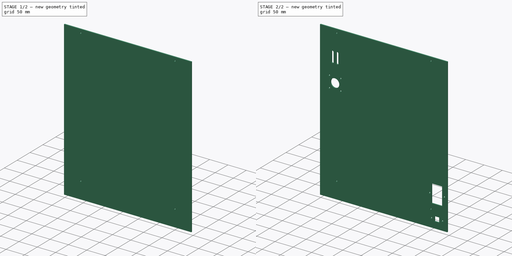
[diagram: build sequence overview — one tinted view per stage of 2, left to right]
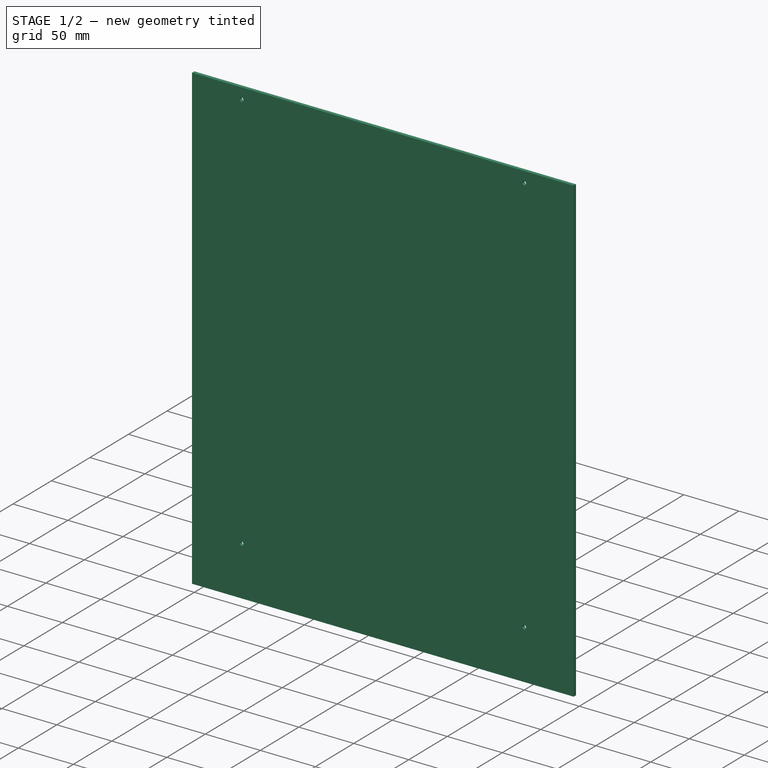
[diagram: stage 1 of 2 — iso view after this stage's code; geometry added in this stage tinted green]
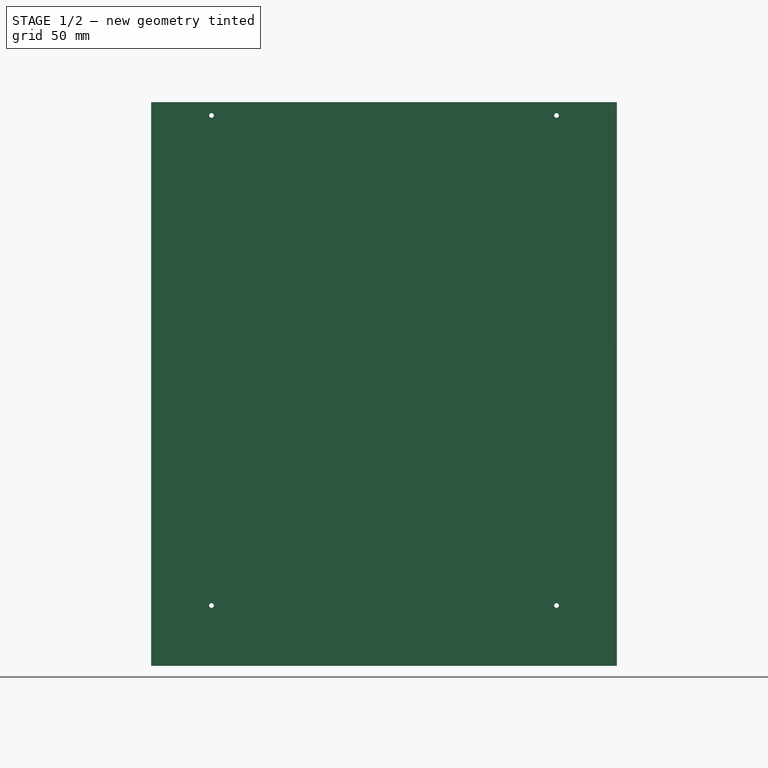
[diagram: stage 1 of 2 — front view after this stage's code; geometry added in this stage tinted green]
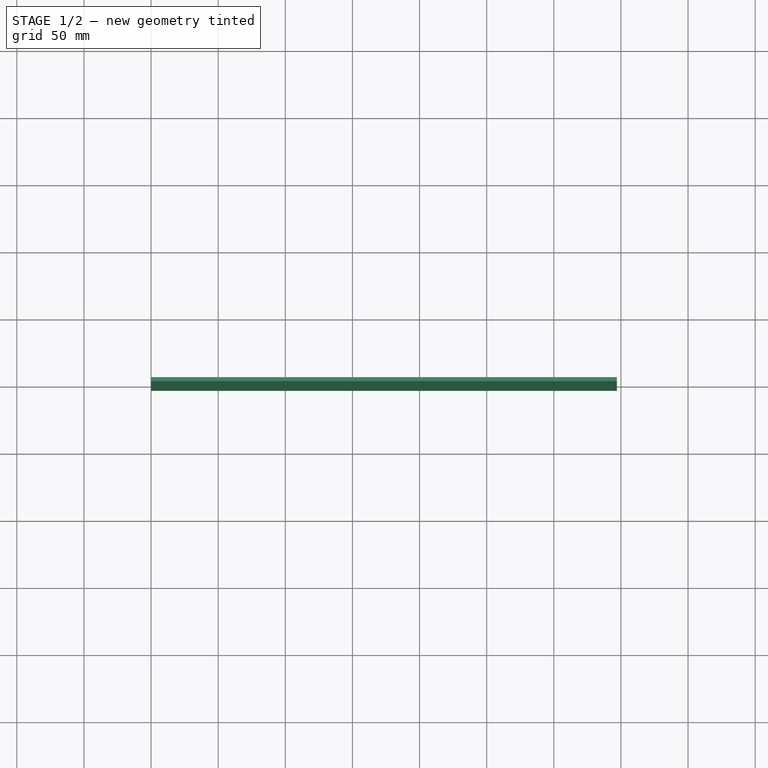
[diagram: stage 1 of 2 — top view after this stage's code; geometry added in this stage tinted green]
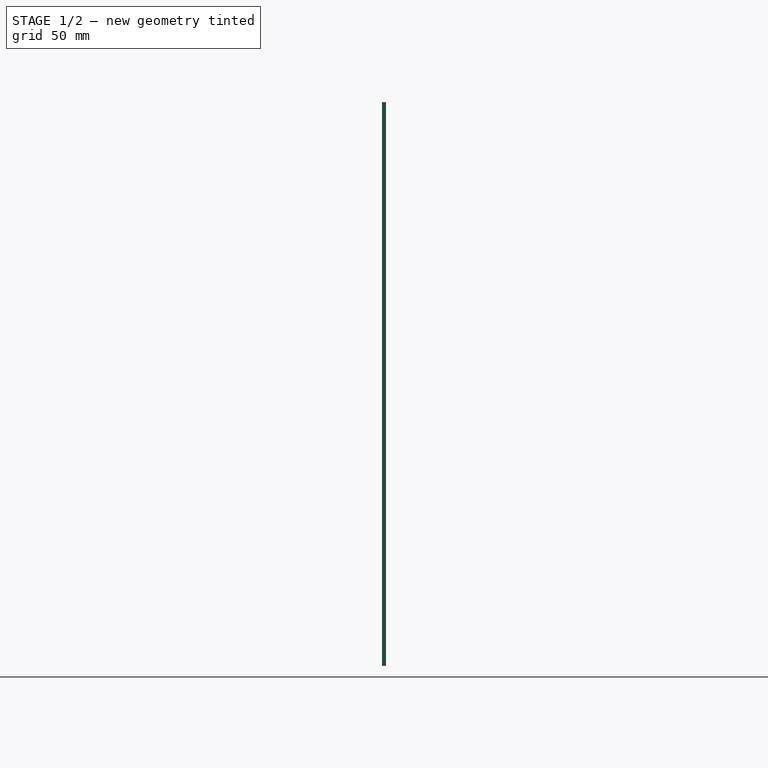
[diagram: stage 1 of 2 — right view after this stage's code; geometry added in this stage tinted green]
FCSTD DOCUMENT  (FreeCAD 0.17R13522 (Git))
Label: Corelia_0_Back_plate
License: All rights reserved
LicenseURL: http://en.wikipedia.org/wiki/All_rights_reserved
objects: Sketcher::SketchObject×4, PartDesign::Pocket×3, PartDesign::Pad×1, PartDesign::Body×1, TechDraw::DrawSVGTemplate×1, TechDraw::DrawViewPart×1, TechDraw::DrawPage×1
note: 13 computed .brp shape members not serialized (recipe doc carries the construction recipe); baked Part::Feature solids carry a one-line shape summary decoded from their .brp

FEATURE [Sketcher::SketchObject] Sketch
  MapMode = 5
  Placement = pos=(0,0,0) rot=(1,0,0;1.5708rad)
  Support = -> [XZ_Plane]
  sketch-geometry (4):
    g0: LineSegment StartX=0 StartY=0 StartZ=0 EndX=347 EndY=0 EndZ=0
    g1: LineSegment StartX=347 StartY=0 StartZ=0 EndX=347 EndY=420 EndZ=0
    g2: LineSegment StartX=347 StartY=420 StartZ=0 EndX=0 EndY=420 EndZ=0
    g3: LineSegment StartX=0 StartY=420 StartZ=0 EndX=0 EndY=0 EndZ=0
  constraints (11):
    c: Coincident(g0,g1)
    c: Coincident(g1,g2)
    c: Coincident(g2,g3)
    c: Coincident(g3,g0)
    c: Horizontal(g0)
    c: Horizontal(g2)
    c: Vertical(g1)
    c: Vertical(g3)
    c: Coincident(g0,g-1)
    c: DistanceY(g3,g3) = 420
    c: DistanceX(g0,g0) = 347
FEATURE [PartDesign::Pad] Pad
  Length = 3
  Length2 = 100
  Placement = pos=(0,0,0) rot=(1,0,0;1.5708rad)
  Profile = -> Sketch
  Type = 0
FEATURE [Sketcher::SketchObject] Sketch001
  MapMode = 5
  Placement = pos=(0,-3,0) rot=(1,0,0;1.5708rad)
  Support = -> [Pad]
  sketch-geometry (8):
    g0: LineSegment [constr] StartX=45 StartY=410 StartZ=0 EndX=302 EndY=410 EndZ=0
    g1: LineSegment [constr] StartX=302 StartY=410 StartZ=0 EndX=302 EndY=45 EndZ=0
    g2: LineSegment [constr] StartX=302 StartY=45 StartZ=0 EndX=45 EndY=45 EndZ=0
    g3: LineSegment [constr] StartX=45 StartY=45 StartZ=0 EndX=45 EndY=410 EndZ=0
    g4: Circle CenterX=45 CenterY=45 CenterZ=0 NormalX=0 NormalY=0 NormalZ=1 AngleXU=0 Radius=1.75
    g5: Circle CenterX=302 CenterY=45 CenterZ=0 NormalX=0 NormalY=0 NormalZ=1 AngleXU=0 Radius=1.75
    g6: Circle CenterX=302 CenterY=410 CenterZ=0 NormalX=0 NormalY=0 NormalZ=1 AngleXU=0 Radius=1.75
    g7: Circle CenterX=45 CenterY=410 CenterZ=0 NormalX=0 NormalY=0 NormalZ=1 AngleXU=0 Radius=1.75
  constraints (20):
    c: Coincident(g0,g1)
    c: Coincident(g1,g2)
    c: Coincident(g2,g3)
    c: Coincident(g3,g0)
    c: Horizontal(g0)
    c: Horizontal(g2)
    c: Vertical(g1)
    c: Vertical(g3)
    c: Coincident(g4,g2)
    c: Coincident(g5,g1)
    c: Coincident(g6,g0)
    c: Coincident(g7,g0)
    c: Equal(g7,g4)
    c: Equal(g4,g5)
    c: Equal(g5,g6)
    c: Radius(g7) = 1.75
    c: DistanceY(g3,g3) = 365
    c: DistanceX(g0,g0) = 257
    c: DistanceX(g2) = 45
    c: DistanceY(g2) = 45
FEATURE [PartDesign::Pocket] Pocket
  BaseFeature = -> Pad
  Length = 5
  Length2 = 100
  Placement = pos=(0,0,0) rot=(1,0,0;1.5708rad)
  Profile = -> Sketch001
  Type = 1
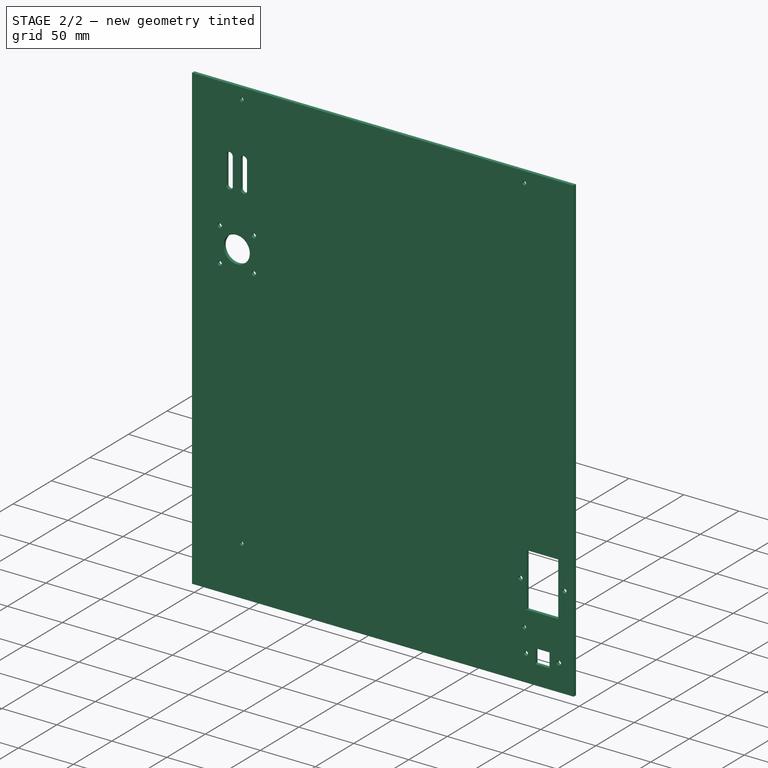
[diagram: stage 2 of 2 — iso view after this stage's code; geometry added in this stage tinted green]
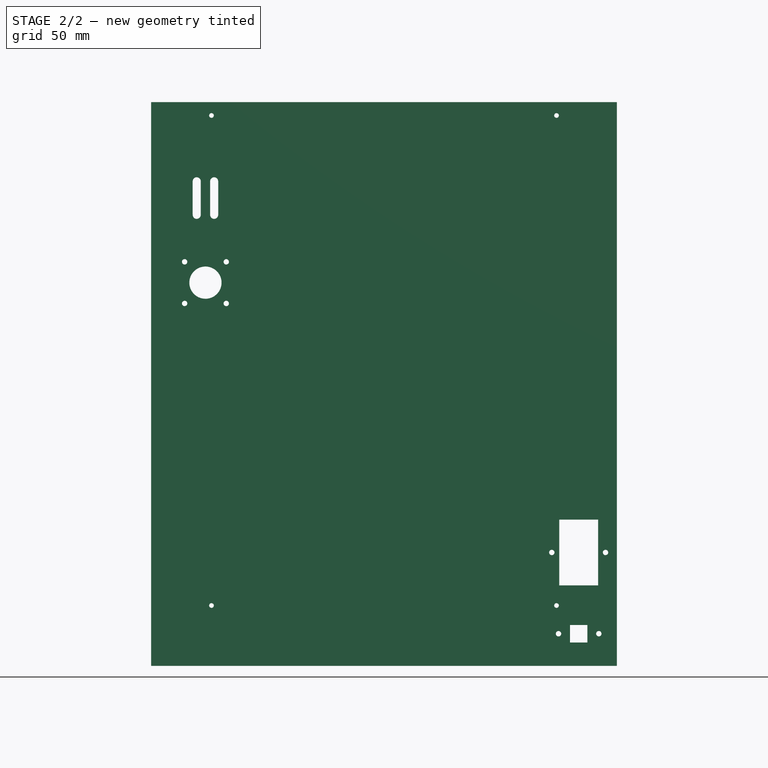
[diagram: stage 2 of 2 — front view after this stage's code; geometry added in this stage tinted green]
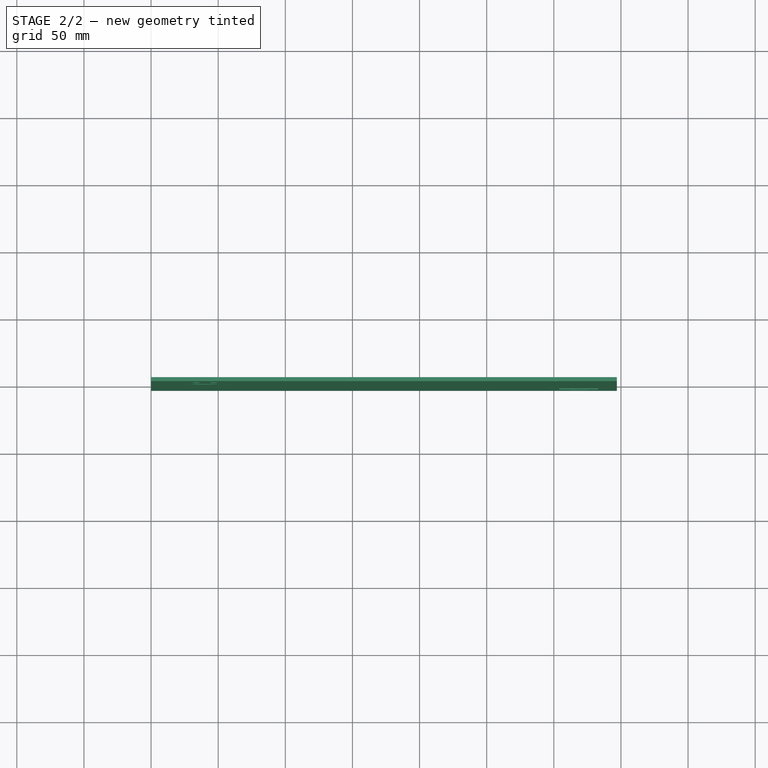
[diagram: stage 2 of 2 — top view after this stage's code; geometry added in this stage tinted green]
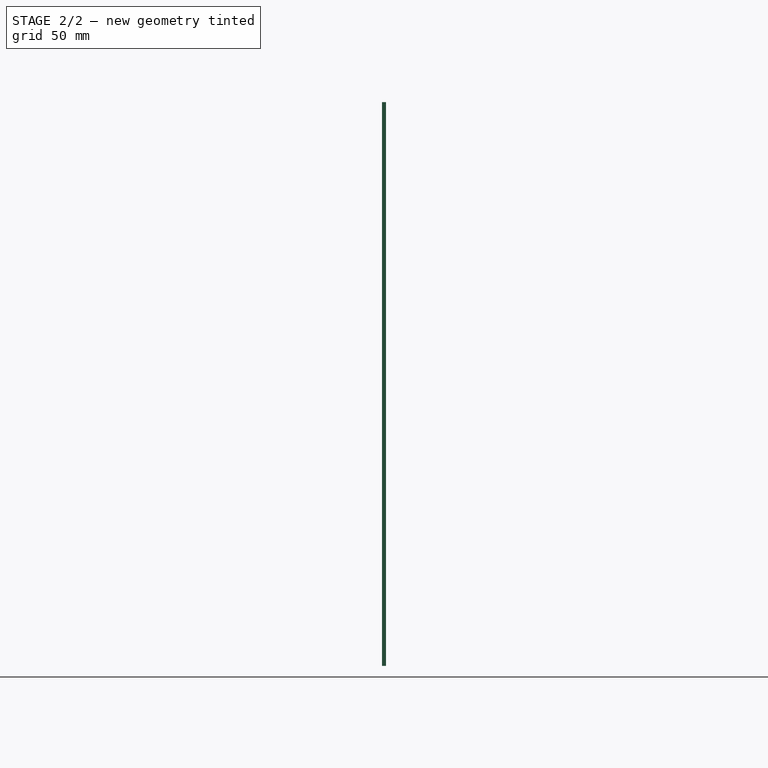
[diagram: stage 2 of 2 — right view after this stage's code; geometry added in this stage tinted green]
FEATURE [Sketcher::SketchObject] Sketch002
  MapMode = 5
  Placement = pos=(0,-3,0) rot=(1,0,0;1.5708rad)
  Support = -> [Pocket]
  sketch-geometry (17):
    g0: LineSegment [constr] StartX=25 StartY=301 StartZ=0 EndX=56 EndY=301 EndZ=0
    g1: LineSegment [constr] StartX=56 StartY=301 StartZ=0 EndX=56 EndY=270 EndZ=0
    g2: LineSegment [constr] StartX=56 StartY=270 StartZ=0 EndX=25 EndY=270 EndZ=0
    g3: LineSegment [constr] StartX=25 StartY=270 StartZ=0 EndX=25 EndY=301 EndZ=0
    g4: Circle CenterX=25 CenterY=301 CenterZ=0 NormalX=0 NormalY=0 NormalZ=1 AngleXU=0 Radius=2
    g5: Circle CenterX=25 CenterY=270 CenterZ=0 NormalX=0 NormalY=0 NormalZ=1 AngleXU=0 Radius=2
    g6: Circle CenterX=56 CenterY=270 CenterZ=0 NormalX=0 NormalY=0 NormalZ=1 AngleXU=0 Radius=2
    g7: Circle CenterX=56 CenterY=301 CenterZ=0 NormalX=0 NormalY=0 NormalZ=1 AngleXU=0 Radius=2
    g8: Circle CenterX=40.5 CenterY=285.5 CenterZ=0 NormalX=0 NormalY=0 NormalZ=1 AngleXU=0 Radius=12
    g9: ArcOfCircle CenterX=34 CenterY=361 CenterZ=0 NormalX=0 NormalY=0 NormalZ=1 AngleXU=0 Radius=3 StartAngle=0 EndAngle=3.14159
    g10: ArcOfCircle CenterX=34 CenterY=336 CenterZ=0 NormalX=0 NormalY=0 NormalZ=1 AngleXU=0 Radius=3 StartAngle=3.14159 EndAngle=6.28319
    g11: LineSegment StartX=31 StartY=361 StartZ=0 EndX=31 EndY=336 EndZ=0
    g12: LineSegment StartX=37 StartY=361 StartZ=0 EndX=37 EndY=336 EndZ=0
    g13: ArcOfCircle CenterX=47 CenterY=361 CenterZ=0 NormalX=0 NormalY=0 NormalZ=1 AngleXU=0 Radius=3 StartAngle=0 EndAngle=3.14159
    g14: ArcOfCircle CenterX=47 CenterY=336 CenterZ=0 NormalX=0 NormalY=0 NormalZ=1 AngleXU=0 Radius=3 StartAngle=3.14159 EndAngle=6.28319
    g15: LineSegment StartX=44 StartY=361 StartZ=0 EndX=44 EndY=336 EndZ=0
    g16: LineSegment StartX=50 StartY=361 StartZ=0 EndX=50 EndY=336 EndZ=0
  constraints (43):
    c: Coincident(g0,g1)
    c: Coincident(g1,g2)
    c: Coincident(g2,g3)
    c: Coincident(g3,g0)
    c: Horizontal(g0)
    c: Horizontal(g2)
    c: Vertical(g1)
    c: Vertical(g3)
    c: Coincident(g4,g0)
    c: Coincident(g5,g2)
    c: Coincident(g6,g1)
    c: Coincident(g7,g0)
    c: Equal(g4,g5)
    c: Equal(g5,g6)
    c: Equal(g6,g7)
    c: Radius(g4) = 2
    c: Equal(g3,g0)
    c: DistanceY(g3,g3) = 31
    c: DistanceX(g2,g8) = 15.5
    c: DistanceY(g2,g8) = 15.5
    c: Radius(g8) = 12
    c: DistanceX(g2) = 25
    c: DistanceY(g2) = 270
    c: Tangent(g9,g12) = 1.5708
    c: Tangent(g9,g11) = -1.5708
    c: Tangent(g11,g10) = -1.5708
    c: Tangent(g12,g10) = 1.5708
    c: Vertical(g11)
    c: Equal(g9,g10)
    c: Tangent(g13,g16) = 1.5708
    c: Tangent(g13,g15) = -1.5708
    c: Tangent(g15,g14) = -1.5708
    c: Tangent(g16,g14) = 1.5708
    c: Vertical(g15)
    c: Equal(g13,g14)
    c: Equal(g11,g15)
    c: Equal(g9,g13)
    c: DistanceY(g11,g11) = 25
    c: Radius(g9) = 3
    c: DistanceY(g10,g13) = 25
    c: DistanceX(g10,g14) = 13
    c: DistanceX(g0,g10) = 9
    c: DistanceY(g0,g10) = 35
FEATURE [PartDesign::Pocket] Pocket001
  BaseFeature = -> Pocket
  Length = 5
  Length2 = 100
  Placement = pos=(0,0,0) rot=(1,0,0;1.5708rad)
  Profile = -> Sketch002
  Type = 0
FEATURE [Sketcher::SketchObject] Sketch003
  MapMode = 5
  Placement = pos=(0,-3,0) rot=(1,0,0;1.5708rad)
  Support = -> [Pocket001]
  sketch-geometry (15):
    g0: LineSegment StartX=304 StartY=109 StartZ=0 EndX=333 EndY=109 EndZ=0
    g1: LineSegment StartX=333 StartY=109 StartZ=0 EndX=333 EndY=60 EndZ=0
    g2: LineSegment StartX=333 StartY=60 StartZ=0 EndX=304 EndY=60 EndZ=0
    g3: LineSegment StartX=304 StartY=60 StartZ=0 EndX=304 EndY=109 EndZ=0
    g4: Circle CenterX=298.5 CenterY=84.5 CenterZ=0 NormalX=0 NormalY=0 NormalZ=1 AngleXU=0 Radius=2
    g5: Circle CenterX=338.5 CenterY=84.5 CenterZ=0 NormalX=0 NormalY=0 NormalZ=1 AngleXU=0 Radius=2
    g6: LineSegment [constr] StartX=298.5 StartY=84.5 StartZ=0 EndX=338.5 EndY=84.5 EndZ=0
    g7: LineSegment [constr] StartX=318.5 StartY=109 StartZ=0 EndX=318.5 EndY=60 EndZ=0
    g8: LineSegment StartX=312 StartY=30.5 StartZ=0 EndX=325 EndY=30.5 EndZ=0
    g9: LineSegment StartX=325 StartY=30.5 StartZ=0 EndX=325 EndY=17.5 EndZ=0
    g10: LineSegment StartX=325 StartY=17.5 StartZ=0 EndX=312 EndY=17.5 EndZ=0
    g11: LineSegment StartX=312 StartY=17.5 StartZ=0 EndX=312 EndY=30.5 EndZ=0
    g12: Circle CenterX=303.5 CenterY=24 CenterZ=0 NormalX=0 NormalY=0 NormalZ=1 AngleXU=0 Radius=2
    g13: Circle CenterX=333.5 CenterY=24 CenterZ=0 NormalX=0 NormalY=0 NormalZ=1 AngleXU=0 Radius=2
    g14: LineSegment [constr] StartX=303.5 StartY=24 StartZ=0 EndX=333.5 EndY=24 EndZ=0
  constraints (44):
    c: Coincident(g0,g1)
    c: Coincident(g1,g2)
    c: Coincident(g2,g3)
    c: Coincident(g3,g0)
    c: Horizontal(g0)
    c: Horizontal(g2)
    c: Vertical(g1)
    c: Vertical(g3)
    c: DistanceY(g3,g3) = 49
    c: DistanceX(g0,g0) = 29
    c: Radius(g4) = 2
    c: Equal(g4,g5)
    c: Coincident(g6,g4)
    c: Coincident(g6,g5)
    c: Horizontal(g6)
    c: DistanceX(g6,g6) = 40
    c: PointOnObject(g7,g0)
    c: PointOnObject(g7,g2)
    c: Vertical(g7)
    c: Symmetric(g0,g0,g7)
    c: Symmetric(g4,g5,g7)
    c: DistanceX(g2) = 304
    c: DistanceY(g2) = 60
    c: Symmetric(g7,g7,g6)
    c: Coincident(g8,g9)
    c: Coincident(g9,g10)
    c: Coincident(g10,g11)
    c: Coincident(g11,g8)
    c: Horizontal(g8)
    c: Horizontal(g10)
    c: Vertical(g9)
    c: Vertical(g11)
    c: Symmetric(g8,g8,g7)
    c: DistanceX(g10,g10) = 13
    c: DistanceY(g9,g9) = 13
    c: Coincident(g14,g12)
    c: Coincident(g14,g13)
    c: Horizontal(g14)
    c: Symmetric(g12,g13,g7)
    c: DistanceX(g14,g14) = 30
    c: Symmetric(g8,g10,g14)
    c: DistanceY(g10) = 17.5
    c: Equal(g12,g13)
    c: Radius(g12) = 2
FEATURE [PartDesign::Pocket] Pocket002
  BaseFeature = -> Pocket001
  Length = 5
  Length2 = 100
  Placement = pos=(0,0,0) rot=(1,0,0;1.5708rad)
  Profile = -> Sketch003
  Type = 1
FEATURE [PartDesign::Body] Body
  Group = -> [Sketch,Pad,Sketch001,Pocket,Sketch002,Pocket001,Sketch003,Pocket002]
  Origin = -> Origin
  Tip = -> Pocket002
FEATURE [TechDraw::DrawSVGTemplate] Template
  Height = 420
  Orientation = 1
  Width = 594
FEATURE [TechDraw::DrawViewPart] View
  CoarseView = false
  Direction = (0,1,0)
  Focus = 100
  HardHidden = false
  IsoCount = 0
  IsoHidden = false
  IsoVisible = false
  LockPosition = false
  Perspective = false
  Rotation = 90
  ScaleType = 0
  SeamHidden = false
  SeamVisible = false
  SmoothHidden = false
  SmoothVisible = false
  Source = -> [Pocket002]
  X = 297
  Y = 210
FEATURE [TechDraw::DrawPage] Page
  KeepUpdated = true
  ProjectionType = 0
  Template = -> Template
  Views = -> [View]
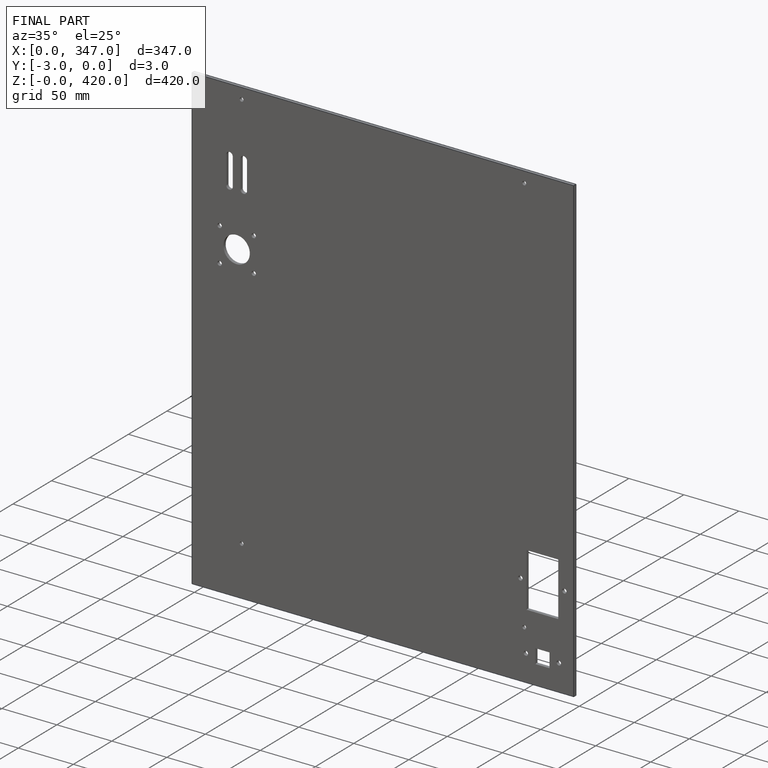
[diagram: finished part — iso view with bounding-box wireframe]
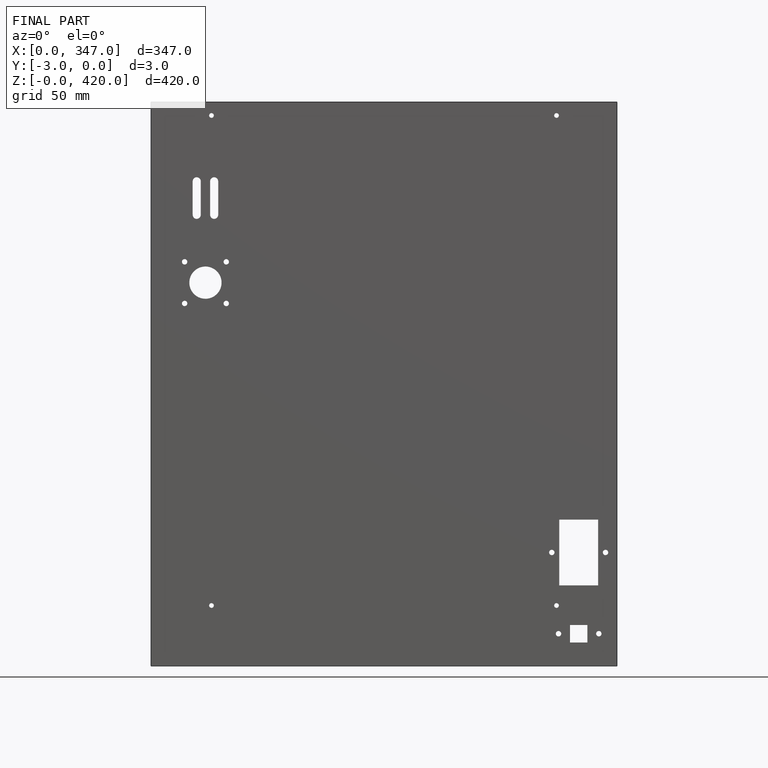
[diagram: finished part — front view with bounding-box wireframe]
